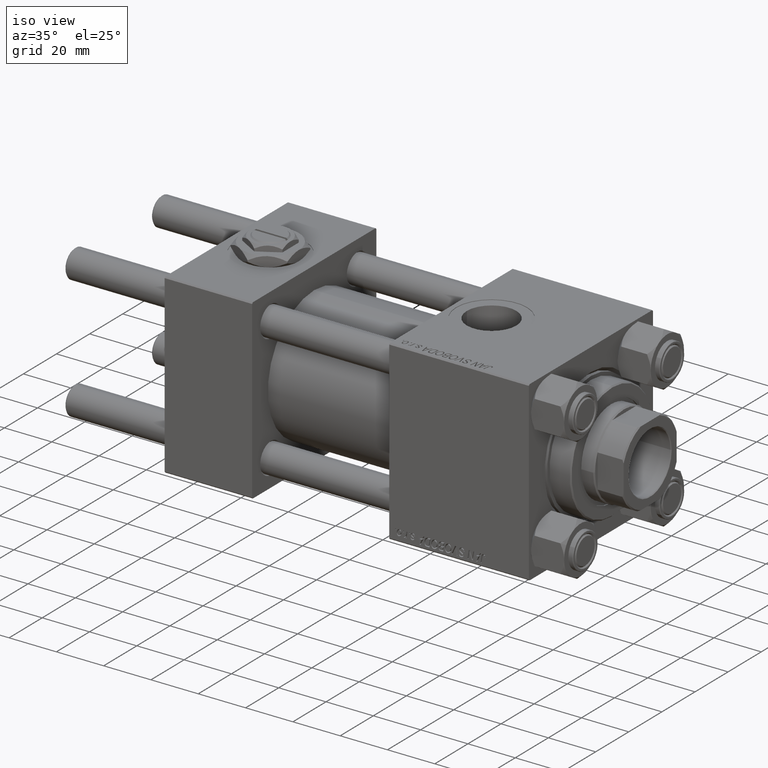
[diagram: clean part render]
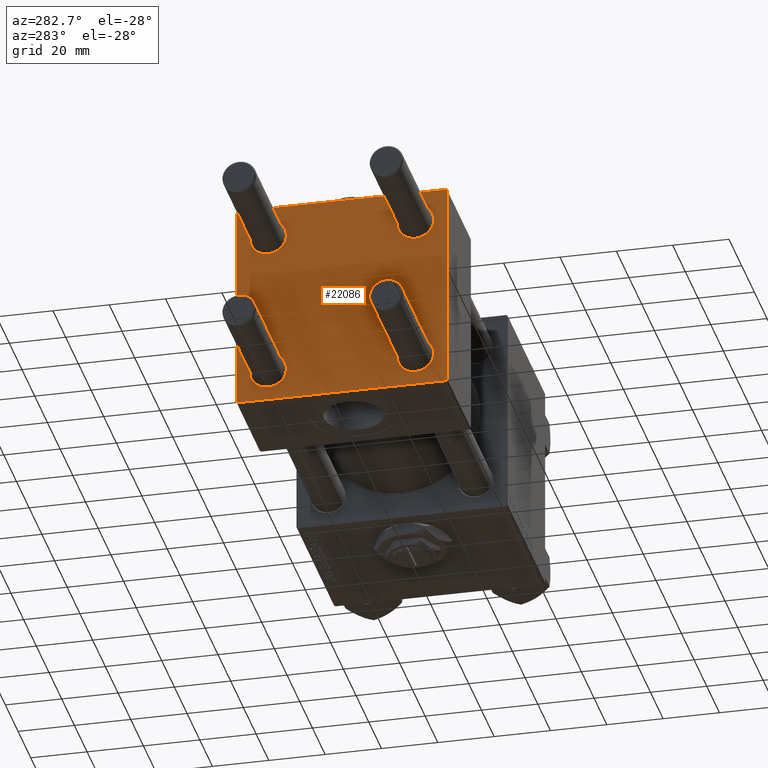
[diagram: tour spotlight — one face highlighted and labeled with its STEP entity id]
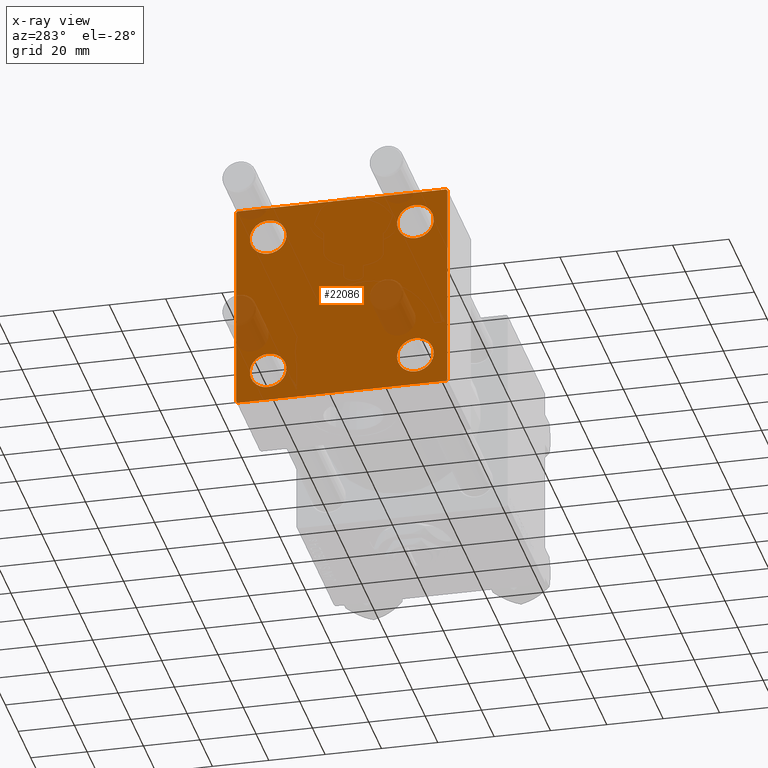
[diagram: x-ray of the same camera — body ghosted, this tour face saturated]
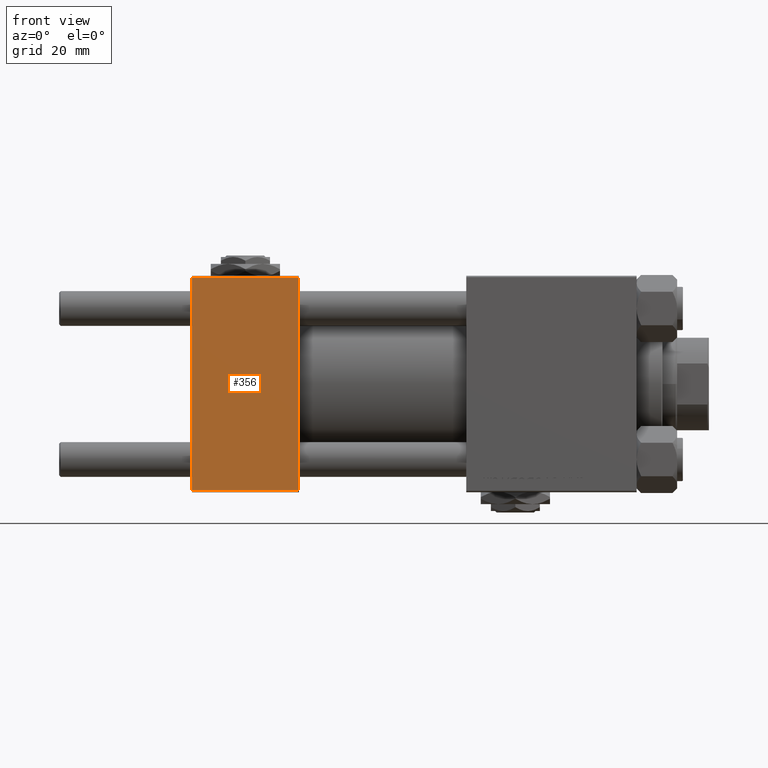
[diagram: tour spotlight — one face highlighted and labeled with its STEP entity id]
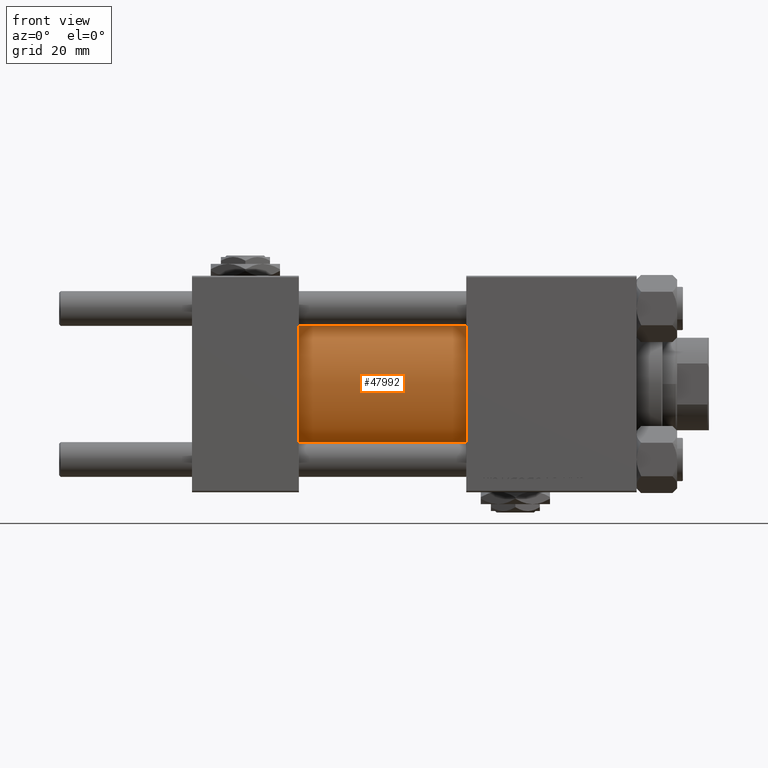
[diagram: tour spotlight — one face highlighted and labeled with its STEP entity id]
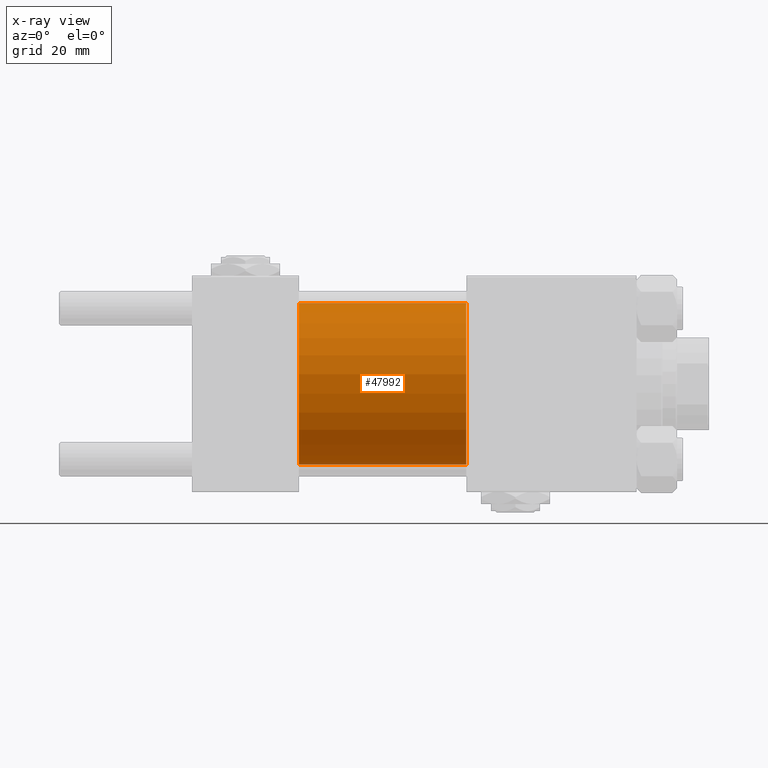
[diagram: x-ray of the same camera — body ghosted, this tour face saturated]
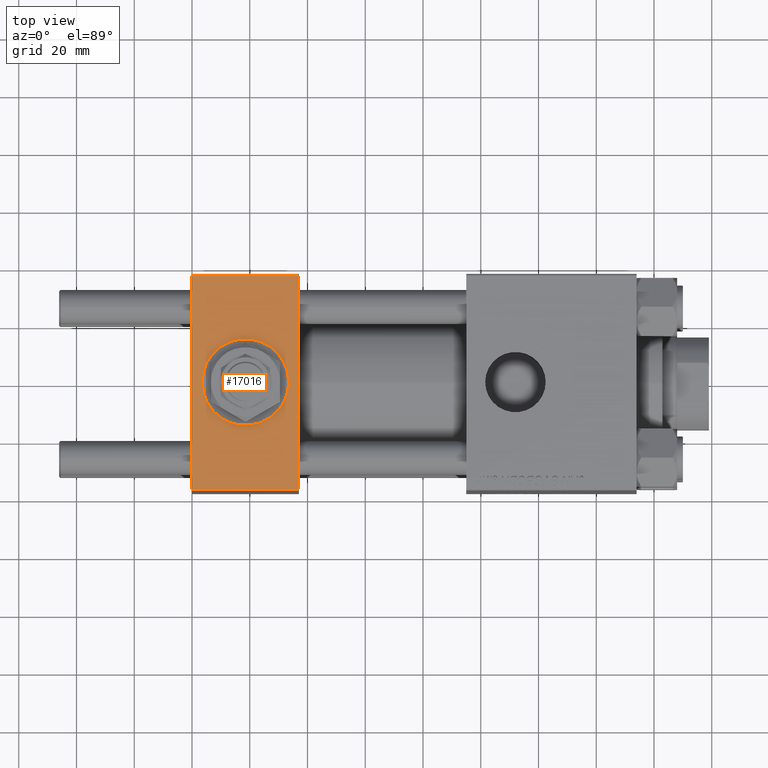
[diagram: tour spotlight — one face highlighted and labeled with its STEP entity id]
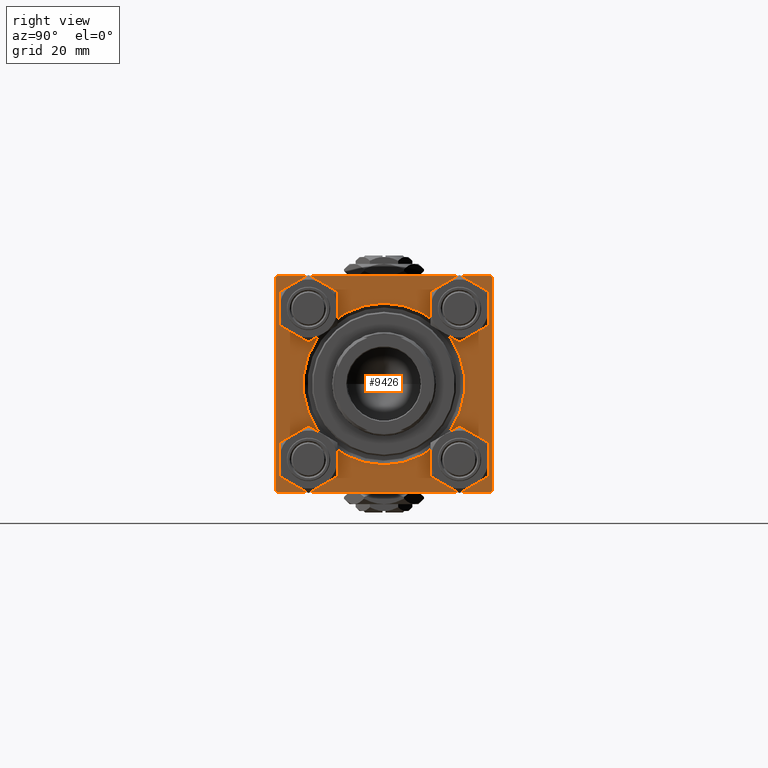
[diagram: tour spotlight — one face highlighted and labeled with its STEP entity id]
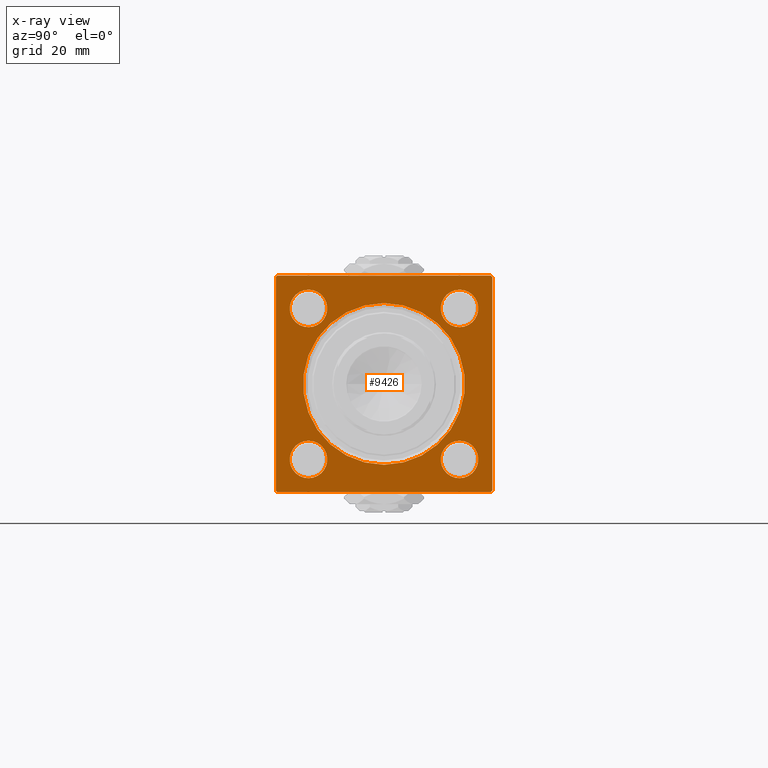
[diagram: x-ray of the same camera — body ghosted, this tour face saturated]
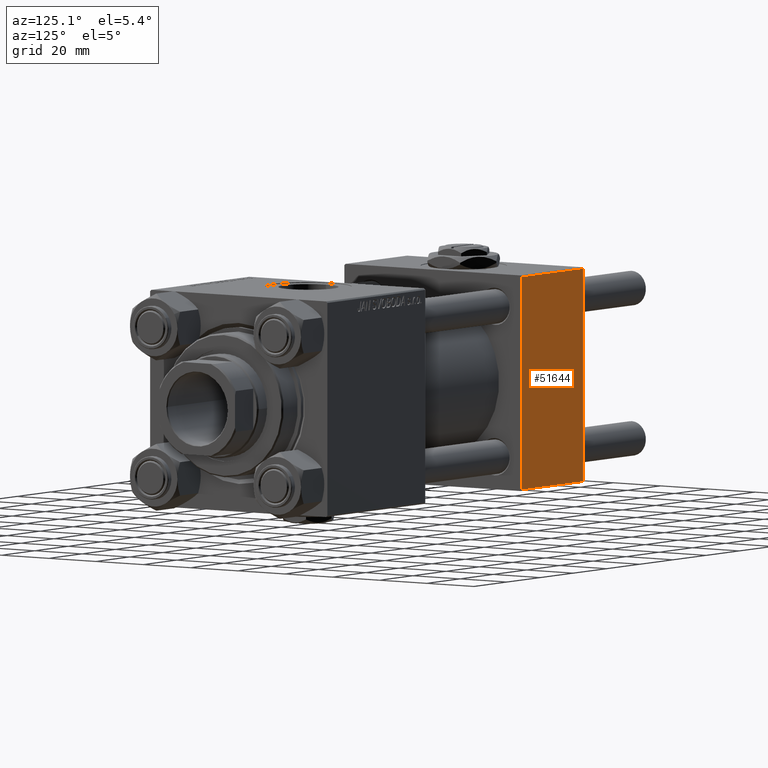
[diagram: tour spotlight — one face highlighted and labeled with its STEP entity id]
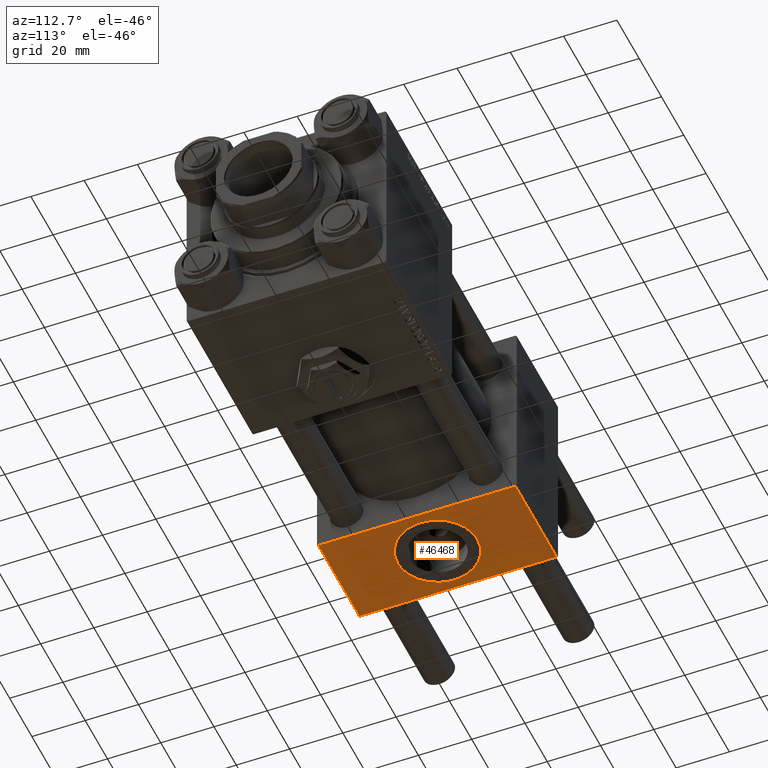
[diagram: tour spotlight — one face highlighted and labeled with its STEP entity id]
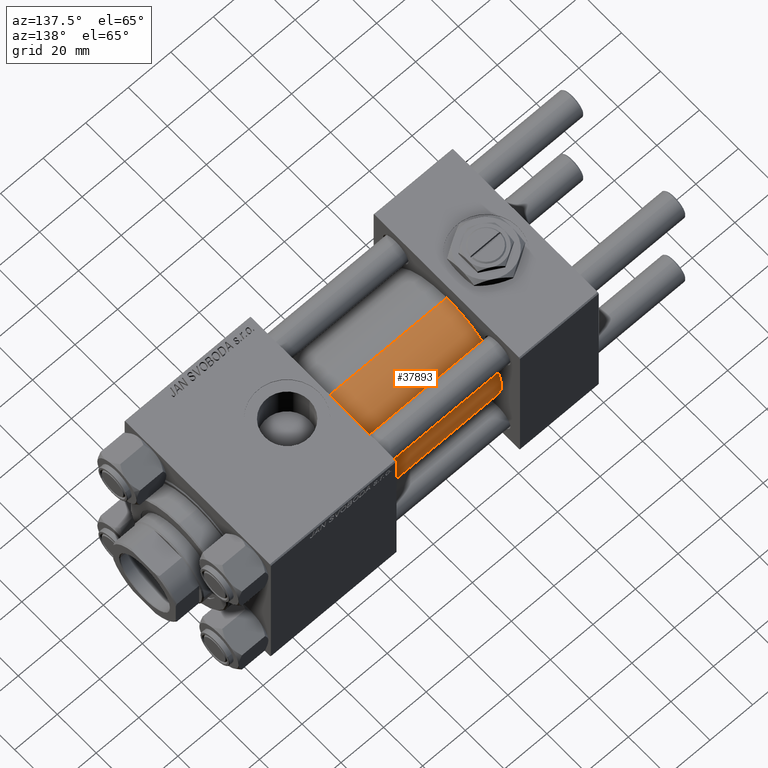
[diagram: tour spotlight — one face highlighted and labeled with its STEP entity id]
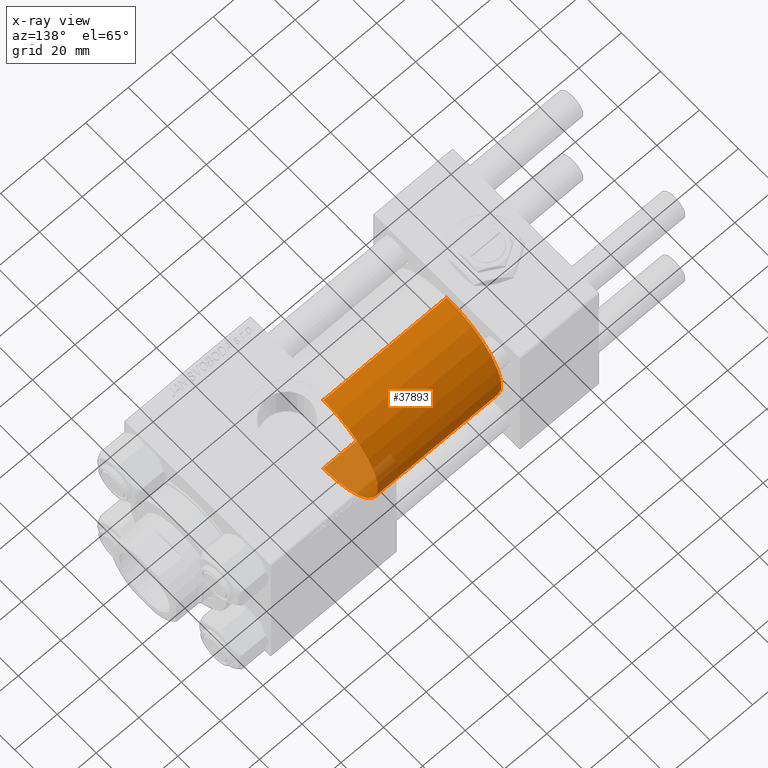
[diagram: x-ray of the same camera — body ghosted, this tour face saturated]
A machine part: a face-by-face anatomy tour. The part has 1233 B-rep faces; the first image is the clean iso view, then the 8 largest visible faces are spotlighted one at a time (largest first), each with its STEP entity span.

Face 1 — auxiliary view, entity #22086. An x-ray twin of the same camera follows (body ghosted, this face saturated) — the face is partly hidden behind the body. In plain terms, the highlighted planar face has unit normal (-1, 0, 0).
Definition (entity closure, byte-faithful):
#239 = AXIS2_PLACEMENT_3D ( 'NONE', #10359, #26335, #51216 ) ;
#1119 = VERTEX_POINT ( 'NONE', #33074 ) ;
#1617 = EDGE_CURVE ( 'NONE', #33967, #42167, #50748, .T. ) ;
#2176 = CARTESIAN_POINT ( 'NONE',  ( 0.000000000000000000, -26.14999999999999147, -26.15000000000000924 ) ) ;
#2228 = CARTESIAN_POINT ( 'NONE',  ( 0.000000000000000000, -26.14999999999999147, -32.65000000000002700 ) ) ;
#2825 = CARTESIAN_POINT ( 'NONE',  ( 0.000000000000000000, 37.24999999999998579, -37.24999999999998579 ) ) ;
#3054 = ORIENTED_EDGE ( 'NONE', *, *, #34775, .T. ) ;
#3163 = LINE ( 'NONE', #30377, #51546 ) ;
#3348 = CARTESIAN_POINT ( 'NONE',  ( 0.000000000000000000, -37.50000000000000711, 36.99999999999999289 ) ) ;
#3556 = ORIENTED_EDGE ( 'NONE', *, *, #23327, .T. ) ;
#3724 = FACE_BOUND ( 'NONE', #21342, .T. ) ;
#4025 = AXIS2_PLACEMENT_3D ( 'NONE', #15071, #11123, #43059 ) ;
#4061 = CARTESIAN_POINT ( 'NONE',  ( 0.000000000000000000, 36.99999999999999289, 37.50000000000000000 ) ) ;
#4241 = EDGE_CURVE ( 'NONE', #37147, #35752, #34302, .T. ) ;
#4574 = DIRECTION ( 'NONE',  ( 0.000000000000000000, 0.000000000000000000, 1.000000000000000000 ) ) ;
#4863 = CARTESIAN_POINT ( 'NONE',  ( 0.000000000000000000, -37.00000000000000711, 37.49999999999999289 ) ) ;
#5368 = VECTOR ( 'NONE', #15626, 1000.000000000000000 ) ;
#5744 = EDGE_CURVE ( 'NONE', #33967, #21075, #31435, .T. ) ;
#6765 = CARTESIAN_POINT ( 'NONE',  ( 0.000000000000000000, 37.49999999999999289, 37.50000000000000000 ) ) ;
#6929 = ORIENTED_EDGE ( 'NONE', *, *, #47260, .T. ) ;
#7408 = CARTESIAN_POINT ( 'NONE',  ( 0.000000000000000000, 37.49999999999999289, 37.00000000000000000 ) ) ;
#7756 = ORIENTED_EDGE ( 'NONE', *, *, #34148, .T. ) ;
#9433 = CARTESIAN_POINT ( 'NONE',  ( 0.000000000000000000, 26.14999999999999858, 19.64999999999998437 ) ) ;
#9720 = ORIENTED_EDGE ( 'NONE', *, *, #28454, .T. ) ;
#10015 = DIRECTION ( 'NONE',  ( 1.000000000000000000, -0.000000000000000000, 0.000000000000000000 ) ) ;
#10359 = CARTESIAN_POINT ( 'NONE',  ( 0.000000000000000000, -26.14999999999999147, 26.15000000000000924 ) ) ;
#10384 = EDGE_LOOP ( 'NONE', ( #3054, #42083 ) ) ;
#11123 = DIRECTION ( 'NONE',  ( 1.000000000000000000, -0.000000000000000000, 0.000000000000000000 ) ) ;
#11197 = EDGE_CURVE ( 'NONE', #35752, #37147, #30346, .T. ) ;
#11276 = AXIS2_PLACEMENT_3D ( 'NONE', #30167, #10015, #46667 ) ;
#12329 = EDGE_CURVE ( 'NONE', #16250, #48252, #18510, .T. ) ;
#12338 = DIRECTION ( 'NONE',  ( -1.000000000000000000, 0.000000000000000000, -0.000000000000000000 ) ) ;
#12339 = CARTESIAN_POINT ( 'NONE',  ( 0.000000000000000000, -26.14999999999999147, 19.64999999999999147 ) ) ;
#12462 = VECTOR ( 'NONE', #27423, 1000.000000000000000 ) ;
#13733 = VERTEX_POINT ( 'NONE', #21327 ) ;
#14332 = LINE ( 'NONE', #2825, #41313 ) ;
#14874 = CARTESIAN_POINT ( 'NONE',  ( 0.000000000000000000, 37.49999999999999289, 37.50000000000000000 ) ) ;
#15071 = CARTESIAN_POINT ( 'NONE',  ( 0.000000000000000000, 26.14999999999999858, 26.15000000000000213 ) ) ;
#15626 = DIRECTION ( 'NONE',  ( 0.000000000000000000, -0.7071067811865524577, 0.7071067811865426878 ) ) ;
#16136 = ORIENTED_EDGE ( 'NONE', *, *, #23489, .T. ) ;
#16232 = CARTESIAN_POINT ( 'NONE',  ( 0.000000000000000000, 26.14999999999999858, -32.65000000000001990 ) ) ;
#16250 = VERTEX_POINT ( 'NONE', #12339 ) ;
#16266 = FACE_BOUND ( 'NONE', #10384, .T. ) ;
#16358 = CARTESIAN_POINT ( 'NONE',  ( 0.000000000000000000, -37.00000000000002132, -37.50000000000000711 ) ) ;
#16386 = VERTEX_POINT ( 'NONE', #9433 ) ;
#16755 = EDGE_LOOP ( 'NONE', ( #48845, #3556, #44911, #16136, #45284, #9720, #36427, #39833 ) ) ;
#17215 = EDGE_LOOP ( 'NONE', ( #20077, #32466 ) ) ;
#17261 = CARTESIAN_POINT ( 'NONE',  ( 0.000000000000000000, -26.14999999999999147, -19.64999999999999503 ) ) ;
#18132 = VECTOR ( 'NONE', #26397, 1000.000000000000000 ) ;
#18510 = CIRCLE ( 'NONE', #35231, 6.500000000000023093 ) ;
#18623 = CARTESIAN_POINT ( 'NONE',  ( 0.000000000000000000, 37.49999999999999289, -37.50000000000000000 ) ) ;
#18905 = EDGE_CURVE ( 'NONE', #48252, #16250, #26152, .T. ) ;
#19006 = CARTESIAN_POINT ( 'NONE',  ( 0.000000000000000000, 26.14999999999999858, -26.15000000000000213 ) ) ;
#19599 = AXIS2_PLACEMENT_3D ( 'NONE', #31967, #12338, #48724 ) ;
#20077 = ORIENTED_EDGE ( 'NONE', *, *, #18905, .T. ) ;
#20142 = AXIS2_PLACEMENT_3D ( 'NONE', #2176, #50346, #37503 ) ;
#20714 = PLANE ( 'NONE',  #19599 ) ;
#21075 = VERTEX_POINT ( 'NONE', #7408 ) ;
#21228 = VECTOR ( 'NONE', #30902, 1000.000000000000000 ) ;
#21301 = EDGE_CURVE ( 'NONE', #1119, #51626, #43195, .T. ) ;
#21327 = CARTESIAN_POINT ( 'NONE',  ( 0.000000000000000000, -37.50000000000000000, -37.00000000000003553 ) ) ;
#21342 = EDGE_LOOP ( 'NONE', ( #6929, #7756 ) ) ;
#21586 = CIRCLE ( 'NONE', #31597, 6.500000000000015987 ) ;
#22086 = ADVANCED_FACE ( 'NONE', ( #39572, #28294, #16266, #3724, #43749 ), #20714, .T. ) ;
#23192 = AXIS2_PLACEMENT_3D ( 'NONE', #32305, #28884, #4574 ) ;
#23327 = EDGE_CURVE ( 'NONE', #49202, #1119, #14332, .T. ) ;
#23489 = EDGE_CURVE ( 'NONE', #51626, #13733, #36285, .T. ) ;
#24082 = EDGE_CURVE ( 'NONE', #47296, #50406, #37194, .T. ) ;
#24110 = CARTESIAN_POINT ( 'NONE',  ( 0.000000000000000000, 37.24999999999999289, 37.24999999999999289 ) ) ;
#25925 = CARTESIAN_POINT ( 'NONE',  ( 0.000000000000000000, -26.14999999999999147, -26.15000000000000924 ) ) ;
#26152 = CIRCLE ( 'NONE', #239, 6.500000000000023093 ) ;
#26335 = DIRECTION ( 'NONE',  ( 1.000000000000000000, -0.000000000000000000, 0.000000000000000000 ) ) ;
#26397 = DIRECTION ( 'NONE',  ( 0.000000000000000000, 0.000000000000000000, -1.000000000000000000 ) ) ;
#27423 = DIRECTION ( 'NONE',  ( 0.000000000000000000, -1.000000000000000000, -9.251858538542971581E-17 ) ) ;
#27597 = VERTEX_POINT ( 'NONE', #3348 ) ;
#28294 = FACE_BOUND ( 'NONE', #37872, .T. ) ;
#28454 = EDGE_CURVE ( 'NONE', #27597, #42167, #3163, .T. ) ;
#28762 = DIRECTION ( 'NONE',  ( 0.000000000000000000, 0.000000000000000000, 1.000000000000000000 ) ) ;
#28884 = DIRECTION ( 'NONE',  ( 1.000000000000000000, -0.000000000000000000, 0.000000000000000000 ) ) ;
#30167 = CARTESIAN_POINT ( 'NONE',  ( 0.000000000000000000, 26.14999999999999858, -26.15000000000000213 ) ) ;
#30346 = CIRCLE ( 'NONE', #50441, 6.500000000000015987 ) ;
#30365 = DIRECTION ( 'NONE',  ( 1.000000000000000000, -0.000000000000000000, 0.000000000000000000 ) ) ;
#30377 = CARTESIAN_POINT ( 'NONE',  ( -0.000000000000000000, -37.25000000000000000, 37.25000000000000000 ) ) ;
#30566 = VECTOR ( 'NONE', #42508, 1000.000000000000000 ) ;
#30839 = LINE ( 'NONE', #6765, #18132 ) ;
#30902 = DIRECTION ( 'NONE',  ( 0.000000000000000000, -1.000000000000000000, -9.251858538542972814E-17 ) ) ;
#31019 = VECTOR ( 'NONE', #47428, 1000.000000000000114 ) ;
#31435 = LINE ( 'NONE', #24110, #31019 ) ;
#31597 = AXIS2_PLACEMENT_3D ( 'NONE', #19006, #45699, #49894 ) ;
#31967 = CARTESIAN_POINT ( 'NONE',  ( 0.000000000000000000, 0.000000000000000000, 0.000000000000000000 ) ) ;
#32305 = CARTESIAN_POINT ( 'NONE',  ( 0.000000000000000000, 26.14999999999999858, 26.15000000000000213 ) ) ;
#32466 = ORIENTED_EDGE ( 'NONE', *, *, #12329, .T. ) ;
#33074 = CARTESIAN_POINT ( 'NONE',  ( 0.000000000000000000, 36.99999999999997868, -37.50000000000000000 ) ) ;
#33967 = VERTEX_POINT ( 'NONE', #4061 ) ;
#34049 = CIRCLE ( 'NONE', #23192, 6.500000000000023093 ) ;
#34148 = EDGE_CURVE ( 'NONE', #16386, #34576, #34049, .T. ) ;
#34302 = CIRCLE ( 'NONE', #20142, 6.500000000000015987 ) ;
#34393 = CARTESIAN_POINT ( 'NONE',  ( 0.000000000000000000, -37.50000000000000711, 37.49999999999999289 ) ) ;
#34576 = VERTEX_POINT ( 'NONE', #42418 ) ;
#34775 = EDGE_CURVE ( 'NONE', #50406, #47296, #21586, .T. ) ;
#35152 = ORIENTED_EDGE ( 'NONE', *, *, #11197, .T. ) ;
#35231 = AXIS2_PLACEMENT_3D ( 'NONE', #36622, #49708, #28762 ) ;
#35752 = VERTEX_POINT ( 'NONE', #17261 ) ;
#36285 = LINE ( 'NONE', #51503, #5368 ) ;
#36427 = ORIENTED_EDGE ( 'NONE', *, *, #1617, .F. ) ;
#36622 = CARTESIAN_POINT ( 'NONE',  ( 0.000000000000000000, -26.14999999999999147, 26.15000000000000924 ) ) ;
#37147 = VERTEX_POINT ( 'NONE', #2228 ) ;
#37194 = CIRCLE ( 'NONE', #11276, 6.500000000000015987 ) ;
#37503 = DIRECTION ( 'NONE',  ( 0.000000000000000000, 0.000000000000000000, 1.000000000000000000 ) ) ;
#37872 = EDGE_LOOP ( 'NONE', ( #35152, #46258 ) ) ;
#39572 = FACE_BOUND ( 'NONE', #17215, .T. ) ;
#39833 = ORIENTED_EDGE ( 'NONE', *, *, #5744, .T. ) ;
#40577 = CARTESIAN_POINT ( 'NONE',  ( 0.000000000000000000, 37.49999999999999289, -36.99999999999998579 ) ) ;
#41313 = VECTOR ( 'NONE', #47058, 1000.000000000000114 ) ;
#42083 = ORIENTED_EDGE ( 'NONE', *, *, #24082, .T. ) ;
#42167 = VERTEX_POINT ( 'NONE', #4863 ) ;
#42344 = CARTESIAN_POINT ( 'NONE',  ( 0.000000000000000000, 26.14999999999999858, -19.64999999999998792 ) ) ;
#42418 = CARTESIAN_POINT ( 'NONE',  ( 0.000000000000000000, 26.14999999999999858, 32.65000000000002700 ) ) ;
#42454 = EDGE_CURVE ( 'NONE', #27597, #13733, #50910, .T. ) ;
#42508 = DIRECTION ( 'NONE',  ( 0.000000000000000000, 9.251858538542971581E-17, -1.000000000000000000 ) ) ;
#42934 = DIRECTION ( 'NONE',  ( -0.000000000000000000, 0.7071067811865474617, 0.7071067811865474617 ) ) ;
#43059 = DIRECTION ( 'NONE',  ( 0.000000000000000000, 0.000000000000000000, 1.000000000000000000 ) ) ;
#43195 = LINE ( 'NONE', #18623, #21228 ) ;
#43749 = FACE_OUTER_BOUND ( 'NONE', #16755, .T. ) ;
#44911 = ORIENTED_EDGE ( 'NONE', *, *, #21301, .T. ) ;
#45063 = EDGE_CURVE ( 'NONE', #21075, #49202, #30839, .T. ) ;
#45284 = ORIENTED_EDGE ( 'NONE', *, *, #42454, .F. ) ;
#45699 = DIRECTION ( 'NONE',  ( 1.000000000000000000, -0.000000000000000000, 0.000000000000000000 ) ) ;
#46258 = ORIENTED_EDGE ( 'NONE', *, *, #4241, .T. ) ;
#46600 = DIRECTION ( 'NONE',  ( 0.000000000000000000, 0.000000000000000000, 1.000000000000000000 ) ) ;
#46667 = DIRECTION ( 'NONE',  ( 0.000000000000000000, 0.000000000000000000, 1.000000000000000000 ) ) ;
#47058 = DIRECTION ( 'NONE',  ( -0.000000000000000000, -0.7071067811865474617, -0.7071067811865474617 ) ) ;
#47260 = EDGE_CURVE ( 'NONE', #34576, #16386, #49978, .T. ) ;
#47296 = VERTEX_POINT ( 'NONE', #16232 ) ;
#47428 = DIRECTION ( 'NONE',  ( 0.000000000000000000, 0.7071067811865474617, -0.7071067811865474617 ) ) ;
#48252 = VERTEX_POINT ( 'NONE', #51668 ) ;
#48724 = DIRECTION ( 'NONE',  ( -0.000000000000000000, 0.000000000000000000, 1.000000000000000000 ) ) ;
#48845 = ORIENTED_EDGE ( 'NONE', *, *, #45063, .T. ) ;
#49202 = VERTEX_POINT ( 'NONE', #40577 ) ;
#49708 = DIRECTION ( 'NONE',  ( 1.000000000000000000, -0.000000000000000000, 0.000000000000000000 ) ) ;
#49894 = DIRECTION ( 'NONE',  ( 0.000000000000000000, 0.000000000000000000, 1.000000000000000000 ) ) ;
#49978 = CIRCLE ( 'NONE', #4025, 6.500000000000023093 ) ;
#50346 = DIRECTION ( 'NONE',  ( 1.000000000000000000, -0.000000000000000000, 0.000000000000000000 ) ) ;
#50406 = VERTEX_POINT ( 'NONE', #42344 ) ;
#50441 = AXIS2_PLACEMENT_3D ( 'NONE', #25925, #30365, #46600 ) ;
#50748 = LINE ( 'NONE', #14874, #12462 ) ;
#50910 = LINE ( 'NONE', #34393, #30566 ) ;
#51216 = DIRECTION ( 'NONE',  ( 0.000000000000000000, 0.000000000000000000, 1.000000000000000000 ) ) ;
#51503 = CARTESIAN_POINT ( 'NONE',  ( 0.000000000000000000, -37.24999999999975842, -37.25000000000027001 ) ) ;
#51546 = VECTOR ( 'NONE', #42934, 1000.000000000000114 ) ;
#51626 = VERTEX_POINT ( 'NONE', #16358 ) ;
#51668 = CARTESIAN_POINT ( 'NONE',  ( 0.000000000000000000, -26.14999999999999147, 32.65000000000003411 ) ) ;

Face 2 — front view, entity #356. In plain terms, the highlighted planar face has unit normal (0, 1, 0).
Definition (entity closure, byte-faithful):
#303 = DIRECTION ( 'NONE',  ( 1.000000000000000000, 0.000000000000000000, 0.000000000000000000 ) ) ;
#356 = ADVANCED_FACE ( 'NONE', ( #48165 ), #40545, .F. ) ;
#1353 = DIRECTION ( 'NONE',  ( -1.000000000000000000, 0.000000000000000000, 0.000000000000000000 ) ) ;
#1857 = DIRECTION ( 'NONE',  ( 0.000000000000000000, 9.251858538542971581E-17, -1.000000000000000000 ) ) ;
#3348 = CARTESIAN_POINT ( 'NONE',  ( 0.000000000000000000, -37.50000000000000711, 36.99999999999999289 ) ) ;
#5983 = VECTOR ( 'NONE', #1857, 1000.000000000000000 ) ;
#12056 = EDGE_CURVE ( 'NONE', #35288, #43762, #12873, .T. ) ;
#12553 = DIRECTION ( 'NONE',  ( 0.000000000000000000, -9.251858538542971581E-17, 1.000000000000000000 ) ) ;
#12873 = LINE ( 'NONE', #45824, #5983 ) ;
#13733 = VERTEX_POINT ( 'NONE', #21327 ) ;
#15389 = EDGE_CURVE ( 'NONE', #13733, #43762, #21213, .T. ) ;
#16996 = DIRECTION ( 'NONE',  ( -0.000000000000000000, 1.000000000000000000, 9.251858538542971581E-17 ) ) ;
#17654 = ORIENTED_EDGE ( 'NONE', *, *, #42454, .T. ) ;
#21213 = LINE ( 'NONE', #40335, #44541 ) ;
#21327 = CARTESIAN_POINT ( 'NONE',  ( 0.000000000000000000, -37.50000000000000000, -37.00000000000003553 ) ) ;
#22475 = AXIS2_PLACEMENT_3D ( 'NONE', #36108, #16996, #12553 ) ;
#23338 = ORIENTED_EDGE ( 'NONE', *, *, #12056, .F. ) ;
#24659 = CARTESIAN_POINT ( 'NONE',  ( 37.00000000000000000, -37.50000000000000711, 36.99999999999999289 ) ) ;
#27597 = VERTEX_POINT ( 'NONE', #3348 ) ;
#28207 = ORIENTED_EDGE ( 'NONE', *, *, #15389, .T. ) ;
#30566 = VECTOR ( 'NONE', #42508, 1000.000000000000000 ) ;
#30941 = CARTESIAN_POINT ( 'NONE',  ( 37.00000000000000000, -37.50000000000000000, -37.00000000000003553 ) ) ;
#34085 = VECTOR ( 'NONE', #1353, 1000.000000000000000 ) ;
#34393 = CARTESIAN_POINT ( 'NONE',  ( 0.000000000000000000, -37.50000000000000711, 37.49999999999999289 ) ) ;
#35288 = VERTEX_POINT ( 'NONE', #24659 ) ;
#35328 = EDGE_CURVE ( 'NONE', #35288, #27597, #36940, .T. ) ;
#36108 = CARTESIAN_POINT ( 'NONE',  ( 37.00000000000000000, -37.50000000000000711, 37.49999999999999289 ) ) ;
#36940 = LINE ( 'NONE', #37195, #34085 ) ;
#37195 = CARTESIAN_POINT ( 'NONE',  ( 37.00000000000000000, -37.50000000000000711, 36.99999999999999289 ) ) ;
#37667 = EDGE_LOOP ( 'NONE', ( #17654, #28207, #23338, #42956 ) ) ;
#40335 = CARTESIAN_POINT ( 'NONE',  ( 37.00000000000000000, -37.50000000000000000, -37.00000000000003553 ) ) ;
#40545 = PLANE ( 'NONE',  #22475 ) ;
#42454 = EDGE_CURVE ( 'NONE', #27597, #13733, #50910, .T. ) ;
#42508 = DIRECTION ( 'NONE',  ( 0.000000000000000000, 9.251858538542971581E-17, -1.000000000000000000 ) ) ;
#42956 = ORIENTED_EDGE ( 'NONE', *, *, #35328, .T. ) ;
#43762 = VERTEX_POINT ( 'NONE', #30941 ) ;
#44541 = VECTOR ( 'NONE', #303, 1000.000000000000000 ) ;
#45824 = CARTESIAN_POINT ( 'NONE',  ( 37.00000000000000000, -37.50000000000000711, 37.49999999999999289 ) ) ;
#48165 = FACE_OUTER_BOUND ( 'NONE', #37667, .T. ) ;
#50910 = LINE ( 'NONE', #34393, #30566 ) ;

Face 3 — front view, entity #47992. An x-ray twin of the same camera follows (body ghosted, this face saturated) — the face is partly hidden behind the body. In plain terms, the highlighted cylindrical surface (partial cylindrical patch) has radius 28 mm, axis along (-1, -0, -0).
Definition (entity closure, byte-faithful):
#5459 = CARTESIAN_POINT ( 'NONE',  ( 95.00000000000000000, 0.000000000000000000, 28.00000000000000000 ) ) ;
#6204 = LINE ( 'NONE', #45997, #45863 ) ;
#6842 = ORIENTED_EDGE ( 'NONE', *, *, #37015, .F. ) ;
#7445 = CARTESIAN_POINT ( 'NONE',  ( 95.00000000000000000, 0.000000000000000000, 28.00000000000000000 ) ) ;
#7510 = DIRECTION ( 'NONE',  ( 1.000000000000000000, -0.000000000000000000, 0.000000000000000000 ) ) ;
#9021 = CYLINDRICAL_SURFACE ( 'NONE', #23204, 28.00000000000000000 ) ;
#9699 = EDGE_CURVE ( 'NONE', #26404, #24941, #43692, .T. ) ;
#10342 = ORIENTED_EDGE ( 'NONE', *, *, #12390, .T. ) ;
#11121 = DIRECTION ( 'NONE',  ( 0.000000000000000000, 0.000000000000000000, -1.000000000000000000 ) ) ;
#12390 = EDGE_CURVE ( 'NONE', #31106, #26404, #33459, .T. ) ;
#15069 = DIRECTION ( 'NONE',  ( 1.000000000000000000, 0.000000000000000000, 0.000000000000000000 ) ) ;
#15731 = CIRCLE ( 'NONE', #30775, 28.00000000000000000 ) ;
#15884 = DIRECTION ( 'NONE',  ( 0.000000000000000000, 0.000000000000000000, 1.000000000000000000 ) ) ;
#17850 = CARTESIAN_POINT ( 'NONE',  ( 37.00000000000000000, 0.000000000000000000, 28.00000000000000000 ) ) ;
#18634 = ORIENTED_EDGE ( 'NONE', *, *, #34905, .F. ) ;
#22809 = AXIS2_PLACEMENT_3D ( 'NONE', #27137, #7510, #15884 ) ;
#23204 = AXIS2_PLACEMENT_3D ( 'NONE', #33087, #48310, #40690 ) ;
#24384 = VECTOR ( 'NONE', #49454, 1000.000000000000000 ) ;
#24941 = VERTEX_POINT ( 'NONE', #28572 ) ;
#26404 = VERTEX_POINT ( 'NONE', #17850 ) ;
#27137 = CARTESIAN_POINT ( 'NONE',  ( 37.00000000000000000, 0.000000000000000000, 0.000000000000000000 ) ) ;
#28572 = CARTESIAN_POINT ( 'NONE',  ( 37.00000000000000000, 3.429011037612588487E-15, -28.00000000000000000 ) ) ;
#30775 = AXIS2_PLACEMENT_3D ( 'NONE', #47535, #15069, #11121 ) ;
#31106 = VERTEX_POINT ( 'NONE', #7445 ) ;
#32322 = FACE_OUTER_BOUND ( 'NONE', #32644, .T. ) ;
#32596 = VERTEX_POINT ( 'NONE', #47979 ) ;
#32644 = EDGE_LOOP ( 'NONE', ( #6842, #18634, #10342, #35652 ) ) ;
#33087 = CARTESIAN_POINT ( 'NONE',  ( 95.00000000000000000, 0.000000000000000000, 0.000000000000000000 ) ) ;
#33459 = LINE ( 'NONE', #5459, #24384 ) ;
#34905 = EDGE_CURVE ( 'NONE', #31106, #32596, #15731, .T. ) ;
#35652 = ORIENTED_EDGE ( 'NONE', *, *, #9699, .T. ) ;
#37015 = EDGE_CURVE ( 'NONE', #32596, #24941, #6204, .T. ) ;
#38138 = DIRECTION ( 'NONE',  ( -1.000000000000000000, -0.000000000000000000, -0.000000000000000000 ) ) ;
#40690 = DIRECTION ( 'NONE',  ( 0.000000000000000000, 0.000000000000000000, 1.000000000000000000 ) ) ;
#43692 = CIRCLE ( 'NONE', #22809, 28.00000000000000000 ) ;
#45863 = VECTOR ( 'NONE', #38138, 1000.000000000000000 ) ;
#45997 = CARTESIAN_POINT ( 'NONE',  ( 95.00000000000000000, 3.429011037612588487E-15, -28.00000000000000000 ) ) ;
#47535 = CARTESIAN_POINT ( 'NONE',  ( 95.00000000000000000, 0.000000000000000000, 0.000000000000000000 ) ) ;
#47979 = CARTESIAN_POINT ( 'NONE',  ( 95.00000000000000000, 3.429011037612588487E-15, -28.00000000000000000 ) ) ;
#47992 = ADVANCED_FACE ( 'NONE', ( #32322 ), #9021, .T. ) ;
#48310 = DIRECTION ( 'NONE',  ( -1.000000000000000000, -0.000000000000000000, -0.000000000000000000 ) ) ;
#49454 = DIRECTION ( 'NONE',  ( -1.000000000000000000, -0.000000000000000000, -0.000000000000000000 ) ) ;

Face 4 — top view, entity #17016. In plain terms, the highlighted planar face has unit normal (0, 0, -1).
Definition (entity closure, byte-faithful):
#628 = CIRCLE ( 'NONE', #36562, 15.00000000000000355 ) ;
#1617 = EDGE_CURVE ( 'NONE', #33967, #42167, #50748, .T. ) ;
#3858 = LINE ( 'NONE', #39711, #36980 ) ;
#4061 = CARTESIAN_POINT ( 'NONE',  ( 0.000000000000000000, 36.99999999999999289, 37.50000000000000000 ) ) ;
#4863 = CARTESIAN_POINT ( 'NONE',  ( 0.000000000000000000, -37.00000000000000711, 37.49999999999999289 ) ) ;
#5489 = VERTEX_POINT ( 'NONE', #48517 ) ;
#6437 = LINE ( 'NONE', #19996, #9482 ) ;
#7958 = CARTESIAN_POINT ( 'NONE',  ( 37.00000000000000000, 37.49999999999999289, 37.50000000000000000 ) ) ;
#9482 = VECTOR ( 'NONE', #34171, 1000.000000000000000 ) ;
#9879 = EDGE_LOOP ( 'NONE', ( #16383, #25488 ) ) ;
#10091 = VERTEX_POINT ( 'NONE', #47245 ) ;
#12462 = VECTOR ( 'NONE', #27423, 1000.000000000000000 ) ;
#13229 = ORIENTED_EDGE ( 'NONE', *, *, #1617, .T. ) ;
#13746 = VERTEX_POINT ( 'NONE', #41460 ) ;
#14874 = CARTESIAN_POINT ( 'NONE',  ( 0.000000000000000000, 37.49999999999999289, 37.50000000000000000 ) ) ;
#15350 = VERTEX_POINT ( 'NONE', #25127 ) ;
#16383 = ORIENTED_EDGE ( 'NONE', *, *, #42512, .F. ) ;
#16418 = DIRECTION ( 'NONE',  ( 0.000000000000000000, 9.251858538542971581E-17, -1.000000000000000000 ) ) ;
#16710 = ORIENTED_EDGE ( 'NONE', *, *, #19679, .T. ) ;
#17016 = ADVANCED_FACE ( 'NONE', ( #32117, #39464 ), #31857, .F. ) ;
#18338 = DIRECTION ( 'NONE',  ( 0.000000000000000000, -1.000000000000000000, -9.251858538542971581E-17 ) ) ;
#19679 = EDGE_CURVE ( 'NONE', #10091, #33967, #3858, .T. ) ;
#19833 = DIRECTION ( 'NONE',  ( -1.000000000000000000, 0.000000000000000000, 0.000000000000000000 ) ) ;
#19996 = CARTESIAN_POINT ( 'NONE',  ( 37.00000000000000000, -37.00000000000000711, 37.49999999999999289 ) ) ;
#21896 = EDGE_CURVE ( 'NONE', #42167, #15350, #6437, .T. ) ;
#25127 = CARTESIAN_POINT ( 'NONE',  ( 37.00000000000000000, -37.00000000000000711, 37.49999999999999289 ) ) ;
#25488 = ORIENTED_EDGE ( 'NONE', *, *, #34407, .F. ) ;
#27394 = ORIENTED_EDGE ( 'NONE', *, *, #37297, .F. ) ;
#27423 = DIRECTION ( 'NONE',  ( 0.000000000000000000, -1.000000000000000000, -9.251858538542971581E-17 ) ) ;
#28100 = DIRECTION ( 'NONE',  ( 1.000000000000000000, 0.000000000000000000, 0.000000000000000000 ) ) ;
#28315 = DIRECTION ( 'NONE',  ( 0.000000000000000000, 0.000000000000000000, 1.000000000000000000 ) ) ;
#28531 = EDGE_LOOP ( 'NONE', ( #13229, #34705, #27394, #16710 ) ) ;
#30214 = AXIS2_PLACEMENT_3D ( 'NONE', #40485, #16418, #36552 ) ;
#31857 = PLANE ( 'NONE',  #30214 ) ;
#32117 = FACE_BOUND ( 'NONE', #9879, .T. ) ;
#33102 = CIRCLE ( 'NONE', #43120, 15.00000000000000355 ) ;
#33967 = VERTEX_POINT ( 'NONE', #4061 ) ;
#34171 = DIRECTION ( 'NONE',  ( 1.000000000000000000, 0.000000000000000000, 0.000000000000000000 ) ) ;
#34407 = EDGE_CURVE ( 'NONE', #5489, #13746, #628, .T. ) ;
#34705 = ORIENTED_EDGE ( 'NONE', *, *, #21896, .T. ) ;
#36552 = DIRECTION ( 'NONE',  ( 0.000000000000000000, 1.000000000000000000, 9.251858538542971581E-17 ) ) ;
#36562 = AXIS2_PLACEMENT_3D ( 'NONE', #40610, #28315, #48994 ) ;
#36980 = VECTOR ( 'NONE', #19833, 1000.000000000000000 ) ;
#37297 = EDGE_CURVE ( 'NONE', #10091, #15350, #43816, .T. ) ;
#39464 = FACE_OUTER_BOUND ( 'NONE', #28531, .T. ) ;
#39711 = CARTESIAN_POINT ( 'NONE',  ( 0.000000000000000000, 36.99999999999999289, 37.50000000000000000 ) ) ;
#40485 = CARTESIAN_POINT ( 'NONE',  ( 37.00000000000000000, 37.49999999999999289, 37.50000000000000000 ) ) ;
#40610 = CARTESIAN_POINT ( 'NONE',  ( 18.50000000000000000, -5.204170427930421283E-15, 37.50000000000000000 ) ) ;
#41460 = CARTESIAN_POINT ( 'NONE',  ( 33.50000000000000000, -5.204170427930421283E-15, 37.50000000000000000 ) ) ;
#41674 = VECTOR ( 'NONE', #18338, 1000.000000000000000 ) ;
#42167 = VERTEX_POINT ( 'NONE', #4863 ) ;
#42512 = EDGE_CURVE ( 'NONE', #13746, #5489, #33102, .T. ) ;
#43120 = AXIS2_PLACEMENT_3D ( 'NONE', #46713, #51687, #28100 ) ;
#43816 = LINE ( 'NONE', #7958, #41674 ) ;
#46713 = CARTESIAN_POINT ( 'NONE',  ( 18.50000000000000000, -5.204170427930421283E-15, 37.50000000000000000 ) ) ;
#47245 = CARTESIAN_POINT ( 'NONE',  ( 37.00000000000000000, 36.99999999999999289, 37.50000000000000000 ) ) ;
#48517 = CARTESIAN_POINT ( 'NONE',  ( 3.499999999999997780, -3.367200229209391300E-15, 37.50000000000000000 ) ) ;
#48994 = DIRECTION ( 'NONE',  ( 1.000000000000000000, 0.000000000000000000, 0.000000000000000000 ) ) ;
#50748 = LINE ( 'NONE', #14874, #12462 ) ;
#51687 = DIRECTION ( 'NONE',  ( 0.000000000000000000, 0.000000000000000000, 1.000000000000000000 ) ) ;

Face 5 — right view, entity #9426. An x-ray twin of the same camera follows (body ghosted, this face saturated) — the face is partly hidden behind the body. In plain terms, the highlighted planar face has unit normal (-1, 0, 0).
Definition (entity closure, byte-faithful):
#2 = DIRECTION ( 'NONE',  ( 0.000000000000000000, 0.000000000000000000, 1.000000000000000000 ) ) ;
#220 = VERTEX_POINT ( 'NONE', #11245 ) ;
#695 = CARTESIAN_POINT ( 'NONE',  ( 154.0000000000000000, 26.14999999999999858, -19.65000000000000213 ) ) ;
#807 = VERTEX_POINT ( 'NONE', #3864 ) ;
#2560 = CARTESIAN_POINT ( 'NONE',  ( 154.0000000000000000, 37.00000000000000000, 37.49999999999999289 ) ) ;
#2634 = CARTESIAN_POINT ( 'NONE',  ( 154.0000000000000000, -26.14999999999999147, 32.65000000000004832 ) ) ;
#3080 = CIRCLE ( 'NONE', #37351, 6.500000000000002665 ) ;
#3662 = DIRECTION ( 'NONE',  ( 0.000000000000000000, 0.000000000000000000, 1.000000000000000000 ) ) ;
#3671 = DIRECTION ( 'NONE',  ( -1.000000000000000000, -0.000000000000000000, 0.000000000000000000 ) ) ;
#3864 = CARTESIAN_POINT ( 'NONE',  ( 154.0000000000000000, 3.429011037612588881E-15, 27.99999999999999645 ) ) ;
#4214 = ORIENTED_EDGE ( 'NONE', *, *, #34587, .T. ) ;
#4313 = EDGE_LOOP ( 'NONE', ( #31978, #49864 ) ) ;
#4427 = CIRCLE ( 'NONE', #6914, 6.500000000000037303 ) ;
#4797 = AXIS2_PLACEMENT_3D ( 'NONE', #7625, #23593, #39297 ) ;
#5146 = CARTESIAN_POINT ( 'NONE',  ( 154.0000000000000000, 37.50000000000000000, 37.49999999999999289 ) ) ;
#5224 = LINE ( 'NONE', #49206, #37224 ) ;
#5446 = DIRECTION ( 'NONE',  ( 0.000000000000000000, 0.000000000000000000, 1.000000000000000000 ) ) ;
#6229 = CARTESIAN_POINT ( 'NONE',  ( 154.0000000000000000, -26.14999999999999147, -32.65000000000001279 ) ) ;
#6379 = LINE ( 'NONE', #22350, #41130 ) ;
#6462 = VECTOR ( 'NONE', #48575, 1000.000000000000000 ) ;
#6914 = AXIS2_PLACEMENT_3D ( 'NONE', #16216, #3671, #47651 ) ;
#7236 = AXIS2_PLACEMENT_3D ( 'NONE', #47126, #34800, #46333 ) ;
#7625 = CARTESIAN_POINT ( 'NONE',  ( 154.0000000000000000, 0.000000000000000000, 0.000000000000000000 ) ) ;
#7687 = VERTEX_POINT ( 'NONE', #2560 ) ;
#7844 = DIRECTION ( 'NONE',  ( -1.000000000000000000, -0.000000000000000000, 0.000000000000000000 ) ) ;
#7871 = ORIENTED_EDGE ( 'NONE', *, *, #32108, .T. ) ;
#8030 = VECTOR ( 'NONE', #17592, 1000.000000000000114 ) ;
#8085 = FACE_OUTER_BOUND ( 'NONE', #27132, .T. ) ;
#8345 = FACE_BOUND ( 'NONE', #17154, .T. ) ;
#9286 = LINE ( 'NONE', #37794, #6462 ) ;
#9380 = DIRECTION ( 'NONE',  ( -1.000000000000000000, -0.000000000000000000, 0.000000000000000000 ) ) ;
#9405 = DIRECTION ( 'NONE',  ( -1.000000000000000000, -0.000000000000000000, 0.000000000000000000 ) ) ;
#9426 = ADVANCED_FACE ( 'NONE', ( #19887, #15688, #8345, #20150, #12016, #8085 ), #32157, .F. ) ;
#9446 = CARTESIAN_POINT ( 'NONE',  ( 154.0000000000000000, 26.14999999999999858, -32.65000000000000568 ) ) ;
#10299 = DIRECTION ( 'NONE',  ( 0.000000000000000000, -9.251858538542972814E-17, -1.000000000000000000 ) ) ;
#10821 = CARTESIAN_POINT ( 'NONE',  ( 154.0000000000000000, -36.99999999999998579, -37.50000000000000000 ) ) ;
#10875 = CARTESIAN_POINT ( 'NONE',  ( 154.0000000000000000, 26.14999999999999858, -26.15000000000000213 ) ) ;
#11156 = VERTEX_POINT ( 'NONE', #2634 ) ;
#11245 = CARTESIAN_POINT ( 'NONE',  ( 154.0000000000000000, 37.00000000000000000, -37.50000000000000000 ) ) ;
#11459 = AXIS2_PLACEMENT_3D ( 'NONE', #40039, #7844, #2 ) ;
#11650 = CIRCLE ( 'NONE', #38399, 6.500000000000002665 ) ;
#12016 = FACE_BOUND ( 'NONE', #19090, .T. ) ;
#13054 = CARTESIAN_POINT ( 'NONE',  ( 154.0000000000000000, -36.99999999999998579, -37.50000000000000000 ) ) ;
#13343 = CARTESIAN_POINT ( 'NONE',  ( 154.0000000000000000, -26.14999999999999147, 26.15000000000000924 ) ) ;
#13518 = CARTESIAN_POINT ( 'NONE',  ( 154.0000000000000000, -26.14999999999999147, -26.15000000000000924 ) ) ;
#13751 = CARTESIAN_POINT ( 'NONE',  ( 154.0000000000000000, 37.50000000000000000, 36.99999999999999289 ) ) ;
#13847 = EDGE_CURVE ( 'NONE', #42165, #46638, #6379, .T. ) ;
#13970 = CARTESIAN_POINT ( 'NONE',  ( 154.0000000000000000, 26.14999999999999858, -26.15000000000000213 ) ) ;
#14557 = DIRECTION ( 'NONE',  ( -1.000000000000000000, -0.000000000000000000, 0.000000000000000000 ) ) ;
#14833 = VERTEX_POINT ( 'NONE', #10821 ) ;
#14866 = CIRCLE ( 'NONE', #44117, 6.500000000000002665 ) ;
#15123 = CARTESIAN_POINT ( 'NONE',  ( 154.0000000000000000, 37.50000000000000000, -36.99999999999999289 ) ) ;
#15688 = FACE_BOUND ( 'NONE', #42630, .T. ) ;
#16216 = CARTESIAN_POINT ( 'NONE',  ( 154.0000000000000000, -26.14999999999999147, 26.15000000000000924 ) ) ;
#16327 = AXIS2_PLACEMENT_3D ( 'NONE', #13343, #9405, #17262 ) ;
#16437 = CIRCLE ( 'NONE', #7236, 27.99999999999999645 ) ;
#16827 = LINE ( 'NONE', #41391, #8030 ) ;
#17154 = EDGE_LOOP ( 'NONE', ( #25720, #19678 ) ) ;
#17262 = DIRECTION ( 'NONE',  ( 0.000000000000000000, 0.000000000000000000, 1.000000000000000000 ) ) ;
#17416 = ORIENTED_EDGE ( 'NONE', *, *, #26447, .T. ) ;
#17592 = DIRECTION ( 'NONE',  ( -0.000000000000000000, -0.7071067811865474617, -0.7071067811865474617 ) ) ;
#17597 = CARTESIAN_POINT ( 'NONE',  ( 154.0000000000000000, -37.50000000000000711, -37.00000000000000711 ) ) ;
#17982 = EDGE_LOOP ( 'NONE', ( #49473, #27966 ) ) ;
#18012 = CIRCLE ( 'NONE', #16327, 6.500000000000037303 ) ;
#18357 = EDGE_CURVE ( 'NONE', #37817, #32747, #50351, .T. ) ;
#18575 = VERTEX_POINT ( 'NONE', #28332 ) ;
#19090 = EDGE_LOOP ( 'NONE', ( #24838, #49156 ) ) ;
#19246 = EDGE_CURVE ( 'NONE', #21036, #11156, #4427, .T. ) ;
#19678 = ORIENTED_EDGE ( 'NONE', *, *, #33173, .T. ) ;
#19887 = FACE_BOUND ( 'NONE', #17982, .T. ) ;
#20081 = CARTESIAN_POINT ( 'NONE',  ( 154.0000000000000000, -37.50000000000000000, 36.99999999999995026 ) ) ;
#20150 = FACE_BOUND ( 'NONE', #4313, .T. ) ;
#20182 = CARTESIAN_POINT ( 'NONE',  ( 154.0000000000000000, 0.000000000000000000, -27.99999999999999645 ) ) ;
#21036 = VERTEX_POINT ( 'NONE', #43258 ) ;
#21141 = EDGE_CURVE ( 'NONE', #220, #14833, #24907, .T. ) ;
#21409 = CARTESIAN_POINT ( 'NONE',  ( 154.0000000000000000, -36.99999999999997158, 37.49999999999997868 ) ) ;
#21511 = VECTOR ( 'NONE', #32186, 1000.000000000000000 ) ;
#21578 = DIRECTION ( 'NONE',  ( -1.000000000000000000, -0.000000000000000000, 0.000000000000000000 ) ) ;
#21893 = EDGE_CURVE ( 'NONE', #25928, #38769, #34561, .T. ) ;
#22350 = CARTESIAN_POINT ( 'NONE',  ( 154.0000000000000000, -37.50000000000000000, 37.49999999999997868 ) ) ;
#22929 = DIRECTION ( 'NONE',  ( 0.000000000000000000, 0.000000000000000000, 1.000000000000000000 ) ) ;
#23593 = DIRECTION ( 'NONE',  ( -1.000000000000000000, -0.000000000000000000, 0.000000000000000000 ) ) ;
#23620 = VERTEX_POINT ( 'NONE', #13751 ) ;
#24644 = VERTEX_POINT ( 'NONE', #40675 ) ;
#24838 = ORIENTED_EDGE ( 'NONE', *, *, #31778, .T. ) ;
#24907 = LINE ( 'NONE', #29084, #30403 ) ;
#25341 = LINE ( 'NONE', #13054, #43182 ) ;
#25720 = ORIENTED_EDGE ( 'NONE', *, *, #21893, .T. ) ;
#25921 = EDGE_CURVE ( 'NONE', #11156, #21036, #18012, .T. ) ;
#25928 = VERTEX_POINT ( 'NONE', #33217 ) ;
#25954 = EDGE_CURVE ( 'NONE', #23620, #7687, #5224, .T. ) ;
#26447 = EDGE_CURVE ( 'NONE', #43078, #42165, #16827, .T. ) ;
#26855 = CARTESIAN_POINT ( 'NONE',  ( 154.0000000000000000, 26.14999999999999858, 26.15000000000000213 ) ) ;
#27132 = EDGE_LOOP ( 'NONE', ( #35506, #7871, #29507, #42665, #49261, #47446, #4214, #17416 ) ) ;
#27966 = ORIENTED_EDGE ( 'NONE', *, *, #34641, .T. ) ;
#27975 = DIRECTION ( 'NONE',  ( -1.000000000000000000, -0.000000000000000000, 0.000000000000000000 ) ) ;
#28332 = CARTESIAN_POINT ( 'NONE',  ( 154.0000000000000000, -26.14999999999999147, -19.65000000000000924 ) ) ;
#28543 = VERTEX_POINT ( 'NONE', #20182 ) ;
#29084 = CARTESIAN_POINT ( 'NONE',  ( 154.0000000000000000, 37.50000000000000000, -37.50000000000000000 ) ) ;
#29219 = DIRECTION ( 'NONE',  ( -1.000000000000000000, -0.000000000000000000, 0.000000000000000000 ) ) ;
#29507 = ORIENTED_EDGE ( 'NONE', *, *, #21141, .F. ) ;
#30403 = VECTOR ( 'NONE', #48752, 1000.000000000000000 ) ;
#30503 = ORIENTED_EDGE ( 'NONE', *, *, #18357, .T. ) ;
#30513 = DIRECTION ( 'NONE',  ( 0.000000000000000000, 0.000000000000000000, 1.000000000000000000 ) ) ;
#30911 = ORIENTED_EDGE ( 'NONE', *, *, #45301, .T. ) ;
#31778 = EDGE_CURVE ( 'NONE', #28543, #807, #16437, .T. ) ;
#31978 = ORIENTED_EDGE ( 'NONE', *, *, #19246, .T. ) ;
#32061 = AXIS2_PLACEMENT_3D ( 'NONE', #26855, #42295, #30513 ) ;
#32108 = EDGE_CURVE ( 'NONE', #46638, #14833, #25341, .T. ) ;
#32157 = PLANE ( 'NONE',  #50364 ) ;
#32186 = DIRECTION ( 'NONE',  ( 0.000000000000000000, -1.000000000000000000, -1.850371707708594316E-16 ) ) ;
#32747 = VERTEX_POINT ( 'NONE', #9446 ) ;
#33173 = EDGE_CURVE ( 'NONE', #38769, #25928, #44079, .T. ) ;
#33217 = CARTESIAN_POINT ( 'NONE',  ( 154.0000000000000000, 26.14999999999999858, 19.64999999999999858 ) ) ;
#34561 = CIRCLE ( 'NONE', #32061, 6.500000000000002665 ) ;
#34587 = EDGE_CURVE ( 'NONE', #7687, #43078, #42670, .T. ) ;
#34641 = EDGE_CURVE ( 'NONE', #18575, #39944, #14866, .T. ) ;
#34800 = DIRECTION ( 'NONE',  ( -1.000000000000000000, -0.000000000000000000, 0.000000000000000000 ) ) ;
#35506 = ORIENTED_EDGE ( 'NONE', *, *, #13847, .T. ) ;
#35514 = LINE ( 'NONE', #15123, #40212 ) ;
#37224 = VECTOR ( 'NONE', #41327, 1000.000000000000114 ) ;
#37351 = AXIS2_PLACEMENT_3D ( 'NONE', #10875, #14557, #22929 ) ;
#37785 = DIRECTION ( 'NONE',  ( 0.000000000000000000, 0.000000000000000000, 1.000000000000000000 ) ) ;
#37794 = CARTESIAN_POINT ( 'NONE',  ( 154.0000000000000000, 37.50000000000000000, 37.49999999999999289 ) ) ;
#37817 = VERTEX_POINT ( 'NONE', #695 ) ;
#38399 = AXIS2_PLACEMENT_3D ( 'NONE', #45242, #9380, #5446 ) ;
#38769 = VERTEX_POINT ( 'NONE', #48923 ) ;
#38841 = EDGE_CURVE ( 'NONE', #39944, #18575, #11650, .T. ) ;
#39020 = EDGE_CURVE ( 'NONE', #220, #24644, #35514, .T. ) ;
#39297 = DIRECTION ( 'NONE',  ( 0.000000000000000000, 0.000000000000000000, 1.000000000000000000 ) ) ;
#39944 = VERTEX_POINT ( 'NONE', #6229 ) ;
#40039 = CARTESIAN_POINT ( 'NONE',  ( 154.0000000000000000, 26.14999999999999858, 26.15000000000000213 ) ) ;
#40212 = VECTOR ( 'NONE', #51509, 999.9999999999998863 ) ;
#40675 = CARTESIAN_POINT ( 'NONE',  ( 154.0000000000000000, 37.50000000000000000, -36.99999999999999289 ) ) ;
#41125 = AXIS2_PLACEMENT_3D ( 'NONE', #13970, #21578, #37785 ) ;
#41130 = VECTOR ( 'NONE', #10299, 1000.000000000000000 ) ;
#41327 = DIRECTION ( 'NONE',  ( 0.000000000000000000, -0.7071067811865474617, 0.7071067811865474617 ) ) ;
#41391 = CARTESIAN_POINT ( 'NONE',  ( 154.0000000000000000, -37.50000000000000000, 36.99999999999995026 ) ) ;
#42165 = VERTEX_POINT ( 'NONE', #20081 ) ;
#42295 = DIRECTION ( 'NONE',  ( -1.000000000000000000, -0.000000000000000000, 0.000000000000000000 ) ) ;
#42630 = EDGE_LOOP ( 'NONE', ( #30911, #30503 ) ) ;
#42665 = ORIENTED_EDGE ( 'NONE', *, *, #39020, .T. ) ;
#42670 = LINE ( 'NONE', #5146, #21511 ) ;
#43078 = VERTEX_POINT ( 'NONE', #21409 ) ;
#43182 = VECTOR ( 'NONE', #44980, 1000.000000000000000 ) ;
#43258 = CARTESIAN_POINT ( 'NONE',  ( 154.0000000000000000, -26.14999999999999147, 19.64999999999997726 ) ) ;
#44079 = CIRCLE ( 'NONE', #11459, 6.500000000000002665 ) ;
#44117 = AXIS2_PLACEMENT_3D ( 'NONE', #13518, #29219, #45190 ) ;
#44980 = DIRECTION ( 'NONE',  ( 0.000000000000000000, 0.7071067811865671127, -0.7071067811865279218 ) ) ;
#45190 = DIRECTION ( 'NONE',  ( 0.000000000000000000, 0.000000000000000000, 1.000000000000000000 ) ) ;
#45242 = CARTESIAN_POINT ( 'NONE',  ( 154.0000000000000000, -26.14999999999999147, -26.15000000000000924 ) ) ;
#45301 = EDGE_CURVE ( 'NONE', #32747, #37817, #3080, .T. ) ;
#46333 = DIRECTION ( 'NONE',  ( 0.000000000000000000, 0.000000000000000000, 1.000000000000000000 ) ) ;
#46371 = EDGE_CURVE ( 'NONE', #23620, #24644, #9286, .T. ) ;
#46638 = VERTEX_POINT ( 'NONE', #17597 ) ;
#46808 = EDGE_CURVE ( 'NONE', #807, #28543, #49933, .T. ) ;
#47126 = CARTESIAN_POINT ( 'NONE',  ( 154.0000000000000000, 0.000000000000000000, 0.000000000000000000 ) ) ;
#47446 = ORIENTED_EDGE ( 'NONE', *, *, #25954, .T. ) ;
#47651 = DIRECTION ( 'NONE',  ( 0.000000000000000000, 0.000000000000000000, 1.000000000000000000 ) ) ;
#47901 = CARTESIAN_POINT ( 'NONE',  ( 154.0000000000000000, 0.000000000000000000, 0.000000000000000000 ) ) ;
#48575 = DIRECTION ( 'NONE',  ( 0.000000000000000000, 0.000000000000000000, -1.000000000000000000 ) ) ;
#48752 = DIRECTION ( 'NONE',  ( 0.000000000000000000, -1.000000000000000000, 0.000000000000000000 ) ) ;
#48923 = CARTESIAN_POINT ( 'NONE',  ( 154.0000000000000000, 26.14999999999999858, 32.65000000000001279 ) ) ;
#49156 = ORIENTED_EDGE ( 'NONE', *, *, #46808, .T. ) ;
#49206 = CARTESIAN_POINT ( 'NONE',  ( 154.0000000000000000, 37.00000000000000000, 37.49999999999999289 ) ) ;
#49261 = ORIENTED_EDGE ( 'NONE', *, *, #46371, .F. ) ;
#49473 = ORIENTED_EDGE ( 'NONE', *, *, #38841, .T. ) ;
#49864 = ORIENTED_EDGE ( 'NONE', *, *, #25921, .T. ) ;
#49933 = CIRCLE ( 'NONE', #4797, 27.99999999999999645 ) ;
#50351 = CIRCLE ( 'NONE', #41125, 6.500000000000002665 ) ;
#50364 = AXIS2_PLACEMENT_3D ( 'NONE', #47901, #27975, #3662 ) ;
#51509 = DIRECTION ( 'NONE',  ( -0.000000000000000000, 0.7071067811865425767, 0.7071067811865525687 ) ) ;

Face 6 — auxiliary view, entity #51644. In plain terms, the highlighted planar face has unit normal (0, 1, 0).
Definition (entity closure, byte-faithful):
#422 = LINE ( 'NONE', #9039, #47308 ) ;
#1561 = VERTEX_POINT ( 'NONE', #19592 ) ;
#4420 = EDGE_LOOP ( 'NONE', ( #11322, #33420, #22820, #13280 ) ) ;
#6765 = CARTESIAN_POINT ( 'NONE',  ( 0.000000000000000000, 37.49999999999999289, 37.50000000000000000 ) ) ;
#7408 = CARTESIAN_POINT ( 'NONE',  ( 0.000000000000000000, 37.49999999999999289, 37.00000000000000000 ) ) ;
#7481 = EDGE_CURVE ( 'NONE', #13437, #49202, #27725, .T. ) ;
#7833 = DIRECTION ( 'NONE',  ( -1.000000000000000000, 0.000000000000000000, 0.000000000000000000 ) ) ;
#9039 = CARTESIAN_POINT ( 'NONE',  ( 37.00000000000000000, 37.49999999999999289, 37.50000000000000000 ) ) ;
#10517 = CARTESIAN_POINT ( 'NONE',  ( 37.00000000000000000, 37.49999999999999289, -36.99999999999998579 ) ) ;
#11322 = ORIENTED_EDGE ( 'NONE', *, *, #30150, .T. ) ;
#13280 = ORIENTED_EDGE ( 'NONE', *, *, #28144, .T. ) ;
#13437 = VERTEX_POINT ( 'NONE', #10517 ) ;
#14224 = CARTESIAN_POINT ( 'NONE',  ( 37.00000000000000000, 37.49999999999999289, 37.00000000000000000 ) ) ;
#16381 = DIRECTION ( 'NONE',  ( 0.000000000000000000, 0.000000000000000000, -1.000000000000000000 ) ) ;
#18132 = VECTOR ( 'NONE', #26397, 1000.000000000000000 ) ;
#19592 = CARTESIAN_POINT ( 'NONE',  ( 37.00000000000000000, 37.49999999999999289, 37.00000000000000000 ) ) ;
#21075 = VERTEX_POINT ( 'NONE', #7408 ) ;
#22820 = ORIENTED_EDGE ( 'NONE', *, *, #45063, .F. ) ;
#26397 = DIRECTION ( 'NONE',  ( 0.000000000000000000, 0.000000000000000000, -1.000000000000000000 ) ) ;
#27725 = LINE ( 'NONE', #43688, #40299 ) ;
#28131 = PLANE ( 'NONE',  #50009 ) ;
#28144 = EDGE_CURVE ( 'NONE', #21075, #1561, #34099, .T. ) ;
#30150 = EDGE_CURVE ( 'NONE', #1561, #13437, #422, .T. ) ;
#30839 = LINE ( 'NONE', #6765, #18132 ) ;
#32571 = FACE_OUTER_BOUND ( 'NONE', #4420, .T. ) ;
#33420 = ORIENTED_EDGE ( 'NONE', *, *, #7481, .T. ) ;
#34099 = LINE ( 'NONE', #14224, #39837 ) ;
#35992 = CARTESIAN_POINT ( 'NONE',  ( 37.00000000000000000, 37.49999999999999289, 37.50000000000000000 ) ) ;
#39837 = VECTOR ( 'NONE', #46153, 1000.000000000000000 ) ;
#40299 = VECTOR ( 'NONE', #7833, 1000.000000000000000 ) ;
#40577 = CARTESIAN_POINT ( 'NONE',  ( 0.000000000000000000, 37.49999999999999289, -36.99999999999998579 ) ) ;
#43581 = DIRECTION ( 'NONE',  ( -0.000000000000000000, 1.000000000000000000, 0.000000000000000000 ) ) ;
#43688 = CARTESIAN_POINT ( 'NONE',  ( 37.00000000000000000, 37.49999999999999289, -36.99999999999998579 ) ) ;
#45063 = EDGE_CURVE ( 'NONE', #21075, #49202, #30839, .T. ) ;
#46153 = DIRECTION ( 'NONE',  ( 1.000000000000000000, 0.000000000000000000, 0.000000000000000000 ) ) ;
#47308 = VECTOR ( 'NONE', #16381, 1000.000000000000000 ) ;
#48557 = DIRECTION ( 'NONE',  ( 0.000000000000000000, -0.000000000000000000, 1.000000000000000000 ) ) ;
#49202 = VERTEX_POINT ( 'NONE', #40577 ) ;
#50009 = AXIS2_PLACEMENT_3D ( 'NONE', #35992, #43581, #48557 ) ;
#51644 = ADVANCED_FACE ( 'NONE', ( #32571 ), #28131, .T. ) ;

Face 7 — auxiliary view, entity #46468. In plain terms, the highlighted planar face has unit normal (0, 0, -1).
Definition (entity closure, byte-faithful):
#785 = AXIS2_PLACEMENT_3D ( 'NONE', #34550, #51064, #2892 ) ;
#1086 = CIRCLE ( 'NONE', #21980, 15.00000000000000000 ) ;
#1119 = VERTEX_POINT ( 'NONE', #33074 ) ;
#2892 = DIRECTION ( 'NONE',  ( 0.000000000000000000, 1.000000000000000000, 0.000000000000000000 ) ) ;
#3605 = VECTOR ( 'NONE', #29184, 1000.000000000000000 ) ;
#4915 = ORIENTED_EDGE ( 'NONE', *, *, #38562, .F. ) ;
#5603 = AXIS2_PLACEMENT_3D ( 'NONE', #47228, #8453, #11342 ) ;
#5708 = CARTESIAN_POINT ( 'NONE',  ( 18.50000000000000000, 1.999870792976790439E-15, -37.50000000000000711 ) ) ;
#6879 = EDGE_CURVE ( 'NONE', #32389, #51626, #22175, .T. ) ;
#8453 = DIRECTION ( 'NONE',  ( 0.000000000000000000, 9.251858538542972814E-17, -1.000000000000000000 ) ) ;
#8730 = ORIENTED_EDGE ( 'NONE', *, *, #15709, .T. ) ;
#8798 = CARTESIAN_POINT ( 'NONE',  ( 37.00000000000000000, -37.00000000000002132, -37.50000000000000711 ) ) ;
#9040 = ORIENTED_EDGE ( 'NONE', *, *, #19545, .F. ) ;
#11342 = DIRECTION ( 'NONE',  ( 0.000000000000000000, 1.000000000000000000, 9.251858538542972814E-17 ) ) ;
#11613 = FACE_BOUND ( 'NONE', #51290, .T. ) ;
#12970 = VERTEX_POINT ( 'NONE', #15978 ) ;
#15165 = CARTESIAN_POINT ( 'NONE',  ( 37.00000000000000000, 37.49999999999999289, -37.50000000000000000 ) ) ;
#15709 = EDGE_CURVE ( 'NONE', #45160, #32389, #23008, .T. ) ;
#15978 = CARTESIAN_POINT ( 'NONE',  ( 18.50000000000000000, 15.00000000000000178, -37.50000000000000711 ) ) ;
#16358 = CARTESIAN_POINT ( 'NONE',  ( 0.000000000000000000, -37.00000000000002132, -37.50000000000000711 ) ) ;
#18348 = CIRCLE ( 'NONE', #785, 15.00000000000000000 ) ;
#18623 = CARTESIAN_POINT ( 'NONE',  ( 0.000000000000000000, 37.49999999999999289, -37.50000000000000000 ) ) ;
#19545 = EDGE_CURVE ( 'NONE', #24889, #12970, #1086, .T. ) ;
#21228 = VECTOR ( 'NONE', #30902, 1000.000000000000000 ) ;
#21270 = ORIENTED_EDGE ( 'NONE', *, *, #21301, .F. ) ;
#21301 = EDGE_CURVE ( 'NONE', #1119, #51626, #43195, .T. ) ;
#21980 = AXIS2_PLACEMENT_3D ( 'NONE', #5708, #46806, #38420 ) ;
#22175 = LINE ( 'NONE', #22949, #42754 ) ;
#22949 = CARTESIAN_POINT ( 'NONE',  ( 0.000000000000000000, -37.00000000000002132, -37.50000000000000711 ) ) ;
#23008 = LINE ( 'NONE', #15165, #3605 ) ;
#23212 = EDGE_CURVE ( 'NONE', #1119, #45160, #32676, .T. ) ;
#24477 = ORIENTED_EDGE ( 'NONE', *, *, #23212, .T. ) ;
#24889 = VERTEX_POINT ( 'NONE', #36180 ) ;
#25339 = DIRECTION ( 'NONE',  ( 1.000000000000000000, 0.000000000000000000, 0.000000000000000000 ) ) ;
#29184 = DIRECTION ( 'NONE',  ( 0.000000000000000000, -1.000000000000000000, -9.251858538542972814E-17 ) ) ;
#30902 = DIRECTION ( 'NONE',  ( 0.000000000000000000, -1.000000000000000000, -9.251858538542972814E-17 ) ) ;
#32389 = VERTEX_POINT ( 'NONE', #8798 ) ;
#32676 = LINE ( 'NONE', #51569, #34655 ) ;
#33074 = CARTESIAN_POINT ( 'NONE',  ( 0.000000000000000000, 36.99999999999997868, -37.50000000000000000 ) ) ;
#34550 = CARTESIAN_POINT ( 'NONE',  ( 18.50000000000000000, 1.999870792976790439E-15, -37.50000000000000711 ) ) ;
#34655 = VECTOR ( 'NONE', #25339, 1000.000000000000000 ) ;
#36180 = CARTESIAN_POINT ( 'NONE',  ( 18.50000000000000355, -14.99999999999999822, -37.50000000000000711 ) ) ;
#36631 = EDGE_LOOP ( 'NONE', ( #21270, #24477, #8730, #42250 ) ) ;
#38420 = DIRECTION ( 'NONE',  ( 0.000000000000000000, 1.000000000000000000, 0.000000000000000000 ) ) ;
#38562 = EDGE_CURVE ( 'NONE', #12970, #24889, #18348, .T. ) ;
#40136 = FACE_OUTER_BOUND ( 'NONE', #36631, .T. ) ;
#42250 = ORIENTED_EDGE ( 'NONE', *, *, #6879, .T. ) ;
#42754 = VECTOR ( 'NONE', #50981, 1000.000000000000000 ) ;
#43195 = LINE ( 'NONE', #18623, #21228 ) ;
#44171 = CARTESIAN_POINT ( 'NONE',  ( 37.00000000000000000, 36.99999999999997868, -37.50000000000000000 ) ) ;
#45160 = VERTEX_POINT ( 'NONE', #44171 ) ;
#46468 = ADVANCED_FACE ( 'NONE', ( #11613, #40136 ), #51420, .T. ) ;
#46806 = DIRECTION ( 'NONE',  ( 0.000000000000000000, -1.734723475976806848E-16, -1.000000000000000000 ) ) ;
#47228 = CARTESIAN_POINT ( 'NONE',  ( 37.00000000000000000, 37.49999999999999289, -37.50000000000000000 ) ) ;
#50981 = DIRECTION ( 'NONE',  ( -1.000000000000000000, 0.000000000000000000, 0.000000000000000000 ) ) ;
#51064 = DIRECTION ( 'NONE',  ( 0.000000000000000000, -1.734723475976806848E-16, -1.000000000000000000 ) ) ;
#51290 = EDGE_LOOP ( 'NONE', ( #4915, #9040 ) ) ;
#51420 = PLANE ( 'NONE',  #5603 ) ;
#51569 = CARTESIAN_POINT ( 'NONE',  ( 37.00000000000000000, 36.99999999999997868, -37.50000000000000000 ) ) ;
#51626 = VERTEX_POINT ( 'NONE', #16358 ) ;

Face 8 — auxiliary view, entity #37893. An x-ray twin of the same camera follows (body ghosted, this face saturated) — the face is partly hidden behind the body. In plain terms, the highlighted cylindrical surface (partial cylindrical patch) has radius 28 mm, axis along (-1, -0, -0).
Definition (entity closure, byte-faithful):
#1715 = CARTESIAN_POINT ( 'NONE',  ( 95.00000000000000000, 0.000000000000000000, 0.000000000000000000 ) ) ;
#1977 = DIRECTION ( 'NONE',  ( -1.000000000000000000, -0.000000000000000000, -0.000000000000000000 ) ) ;
#4262 = AXIS2_PLACEMENT_3D ( 'NONE', #30820, #18800, #46811 ) ;
#4593 = EDGE_CURVE ( 'NONE', #24941, #26404, #35136, .T. ) ;
#5459 = CARTESIAN_POINT ( 'NONE',  ( 95.00000000000000000, 0.000000000000000000, 28.00000000000000000 ) ) ;
#6204 = LINE ( 'NONE', #45997, #45863 ) ;
#7445 = CARTESIAN_POINT ( 'NONE',  ( 95.00000000000000000, 0.000000000000000000, 28.00000000000000000 ) ) ;
#12390 = EDGE_CURVE ( 'NONE', #31106, #26404, #33459, .T. ) ;
#12472 = AXIS2_PLACEMENT_3D ( 'NONE', #1715, #1977, #48857 ) ;
#16918 = FACE_OUTER_BOUND ( 'NONE', #47159, .T. ) ;
#17538 = DIRECTION ( 'NONE',  ( 0.000000000000000000, 0.000000000000000000, -1.000000000000000000 ) ) ;
#17850 = CARTESIAN_POINT ( 'NONE',  ( 37.00000000000000000, 0.000000000000000000, 28.00000000000000000 ) ) ;
#18061 = ORIENTED_EDGE ( 'NONE', *, *, #4593, .T. ) ;
#18800 = DIRECTION ( 'NONE',  ( 1.000000000000000000, -0.000000000000000000, 0.000000000000000000 ) ) ;
#24384 = VECTOR ( 'NONE', #49454, 1000.000000000000000 ) ;
#24941 = VERTEX_POINT ( 'NONE', #28572 ) ;
#26404 = VERTEX_POINT ( 'NONE', #17850 ) ;
#28281 = DIRECTION ( 'NONE',  ( 1.000000000000000000, 0.000000000000000000, 0.000000000000000000 ) ) ;
#28572 = CARTESIAN_POINT ( 'NONE',  ( 37.00000000000000000, 3.429011037612588487E-15, -28.00000000000000000 ) ) ;
#29141 = AXIS2_PLACEMENT_3D ( 'NONE', #32207, #28281, #17538 ) ;
#30820 = CARTESIAN_POINT ( 'NONE',  ( 37.00000000000000000, 0.000000000000000000, 0.000000000000000000 ) ) ;
#30828 = CIRCLE ( 'NONE', #29141, 28.00000000000000000 ) ;
#31106 = VERTEX_POINT ( 'NONE', #7445 ) ;
#32207 = CARTESIAN_POINT ( 'NONE',  ( 95.00000000000000000, 0.000000000000000000, 0.000000000000000000 ) ) ;
#32596 = VERTEX_POINT ( 'NONE', #47979 ) ;
#33459 = LINE ( 'NONE', #5459, #24384 ) ;
#33634 = CYLINDRICAL_SURFACE ( 'NONE', #12472, 28.00000000000000000 ) ;
#34599 = ORIENTED_EDGE ( 'NONE', *, *, #12390, .F. ) ;
#35136 = CIRCLE ( 'NONE', #4262, 28.00000000000000000 ) ;
#37015 = EDGE_CURVE ( 'NONE', #32596, #24941, #6204, .T. ) ;
#37893 = ADVANCED_FACE ( 'NONE', ( #16918 ), #33634, .T. ) ;
#38138 = DIRECTION ( 'NONE',  ( -1.000000000000000000, -0.000000000000000000, -0.000000000000000000 ) ) ;
#40823 = ORIENTED_EDGE ( 'NONE', *, *, #37015, .T. ) ;
#41600 = ORIENTED_EDGE ( 'NONE', *, *, #49322, .F. ) ;
#45863 = VECTOR ( 'NONE', #38138, 1000.000000000000000 ) ;
#45997 = CARTESIAN_POINT ( 'NONE',  ( 95.00000000000000000, 3.429011037612588487E-15, -28.00000000000000000 ) ) ;
#46811 = DIRECTION ( 'NONE',  ( 0.000000000000000000, 0.000000000000000000, 1.000000000000000000 ) ) ;
#47159 = EDGE_LOOP ( 'NONE', ( #41600, #40823, #18061, #34599 ) ) ;
#47979 = CARTESIAN_POINT ( 'NONE',  ( 95.00000000000000000, 3.429011037612588487E-15, -28.00000000000000000 ) ) ;
#48857 = DIRECTION ( 'NONE',  ( 0.000000000000000000, 0.000000000000000000, 1.000000000000000000 ) ) ;
#49322 = EDGE_CURVE ( 'NONE', #32596, #31106, #30828, .T. ) ;
#49454 = DIRECTION ( 'NONE',  ( -1.000000000000000000, -0.000000000000000000, -0.000000000000000000 ) ) ;